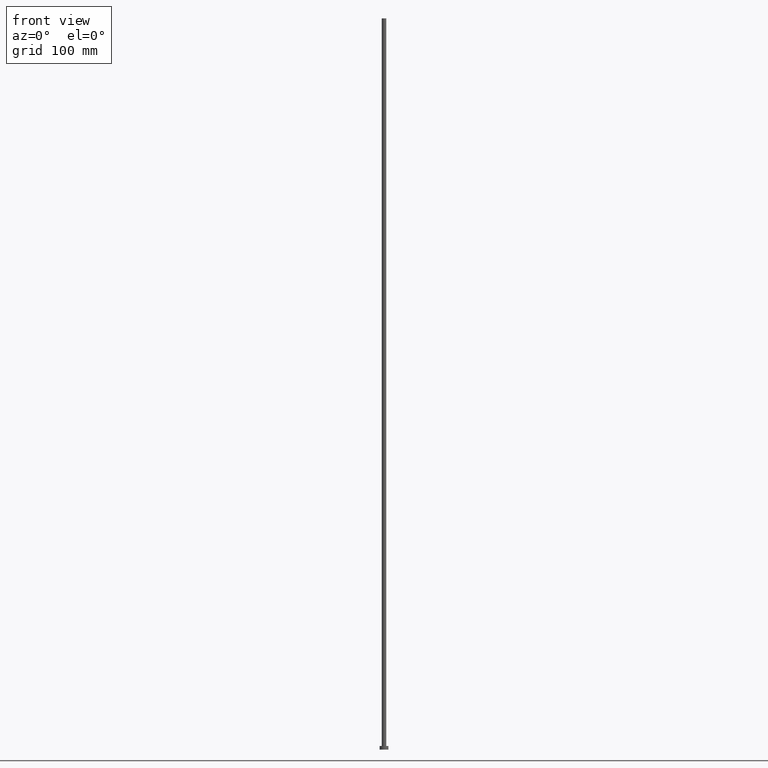
[diagram: clean part render]
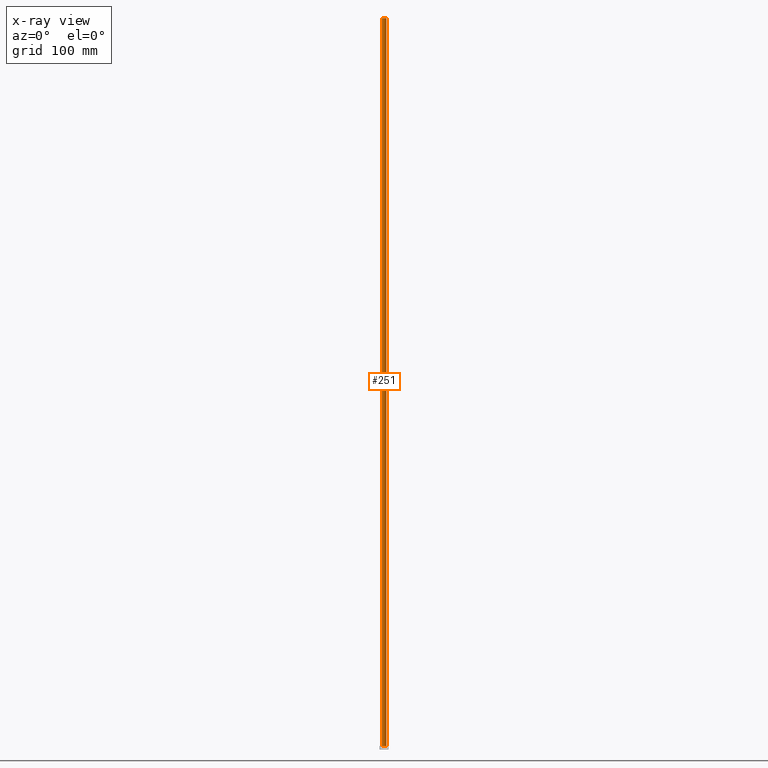
[diagram: x-ray — body ghosted, one internal face saturated and labeled with its STEP entity id]
A machine part, front view, then the same camera in x-ray: the body is ghosted and one INTERNAL B-rep face — a face not visible from any outside direction — is saturated and labeled: STEP entity #251.
In plain terms, the highlighted cylindrical surface (edge-blend (fillet) strip) has radius 3 mm, axis along (-0, -0, -1).
Its self-contained STEP definition (entity closure, byte-faithful):
#4 = DIRECTION ( 'NONE',  ( 0.000000000000000000, 0.000000000000000000, 1.000000000000000000 ) ) ;
#8 = CIRCLE ( 'NONE', #92, 3.000000000000000444 ) ;
#10 = DIRECTION ( 'NONE',  ( 1.000000000000000000, 0.000000000000000000, 0.000000000000000000 ) ) ;
#18 = VERTEX_POINT ( 'NONE', #20 ) ;
#20 = CARTESIAN_POINT ( 'NONE',  ( -3.000000000000000444, 0.000000000000000000, 5.000000000000000000 ) ) ;
#27 = CARTESIAN_POINT ( 'NONE',  ( 0.000000000000000000, 0.000000000000000000, 5.000000000000000000 ) ) ;
#41 = DIRECTION ( 'NONE',  ( -0.000000000000000000, -0.000000000000000000, -1.000000000000000000 ) ) ;
#51 = VECTOR ( 'NONE', #249, 1000.000000000000000 ) ;
#56 = VERTEX_POINT ( 'NONE', #116 ) ;
#61 = LINE ( 'NONE', #161, #121 ) ;
#64 = EDGE_LOOP ( 'NONE', ( #255, #118, #203, #158 ) ) ;
#65 = CYLINDRICAL_SURFACE ( 'NONE', #225, 3.000000000000000444 ) ;
#67 = VERTEX_POINT ( 'NONE', #129 ) ;
#86 = CARTESIAN_POINT ( 'NONE',  ( 3.000000000000000444, 3.673940397442059868E-16, 1000.000000000000000 ) ) ;
#89 = DIRECTION ( 'NONE',  ( 0.000000000000000000, 0.000000000000000000, 1.000000000000000000 ) ) ;
#92 = AXIS2_PLACEMENT_3D ( 'NONE', #108, #89, #153 ) ;
#94 = CIRCLE ( 'NONE', #235, 3.000000000000000444 ) ;
#106 = LINE ( 'NONE', #86, #51 ) ;
#108 = CARTESIAN_POINT ( 'NONE',  ( 0.000000000000000000, 0.000000000000000000, 1000.000000000000000 ) ) ;
#116 = CARTESIAN_POINT ( 'NONE',  ( 3.000000000000000444, 3.673940397442059868E-16, 1000.000000000000000 ) ) ;
#118 = ORIENTED_EDGE ( 'NONE', *, *, #230, .T. ) ;
#121 = VECTOR ( 'NONE', #41, 1000.000000000000000 ) ;
#127 = DIRECTION ( 'NONE',  ( -0.000000000000000000, -0.000000000000000000, -1.000000000000000000 ) ) ;
#129 = CARTESIAN_POINT ( 'NONE',  ( -3.000000000000000444, 0.000000000000000000, 1000.000000000000000 ) ) ;
#153 = DIRECTION ( 'NONE',  ( 1.000000000000000000, 0.000000000000000000, 0.000000000000000000 ) ) ;
#155 = DIRECTION ( 'NONE',  ( -1.000000000000000000, 0.000000000000000000, 0.000000000000000000 ) ) ;
#158 = ORIENTED_EDGE ( 'NONE', *, *, #237, .F. ) ;
#160 = CARTESIAN_POINT ( 'NONE',  ( 0.000000000000000000, 0.000000000000000000, 1000.000000000000000 ) ) ;
#161 = CARTESIAN_POINT ( 'NONE',  ( -3.000000000000000444, 0.000000000000000000, 1000.000000000000000 ) ) ;
#191 = VERTEX_POINT ( 'NONE', #212 ) ;
#200 = EDGE_CURVE ( 'NONE', #191, #18, #94, .T. ) ;
#203 = ORIENTED_EDGE ( 'NONE', *, *, #200, .T. ) ;
#212 = CARTESIAN_POINT ( 'NONE',  ( 3.000000000000000444, 3.673940397442059868E-16, 5.000000000000000000 ) ) ;
#222 = EDGE_CURVE ( 'NONE', #56, #67, #8, .T. ) ;
#225 = AXIS2_PLACEMENT_3D ( 'NONE', #160, #127, #155 ) ;
#230 = EDGE_CURVE ( 'NONE', #56, #191, #106, .T. ) ;
#235 = AXIS2_PLACEMENT_3D ( 'NONE', #27, #4, #10 ) ;
#237 = EDGE_CURVE ( 'NONE', #67, #18, #61, .T. ) ;
#242 = FACE_OUTER_BOUND ( 'NONE', #64, .T. ) ;
#249 = DIRECTION ( 'NONE',  ( -0.000000000000000000, -0.000000000000000000, -1.000000000000000000 ) ) ;
#251 = ADVANCED_FACE ( 'NONE', ( #242 ), #65, .T. ) ;
#255 = ORIENTED_EDGE ( 'NONE', *, *, #222, .F. ) ;